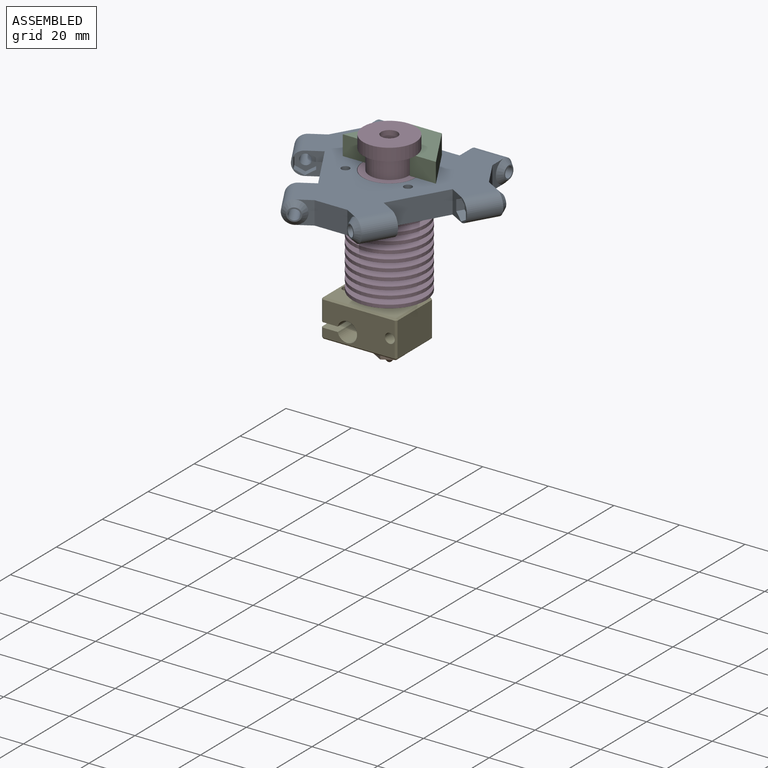
[diagram: assembled view]
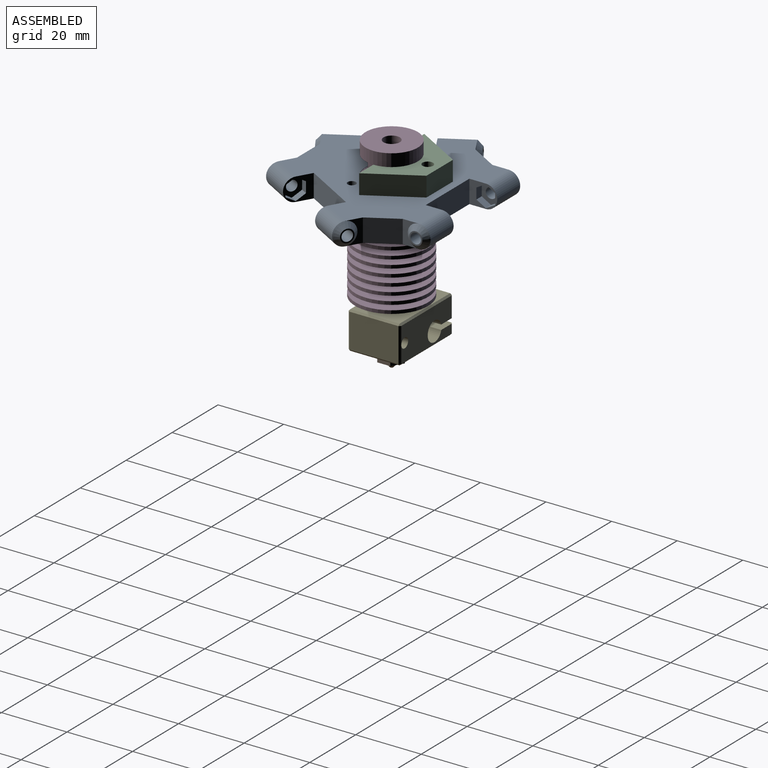
[diagram: assembled view, second angle]
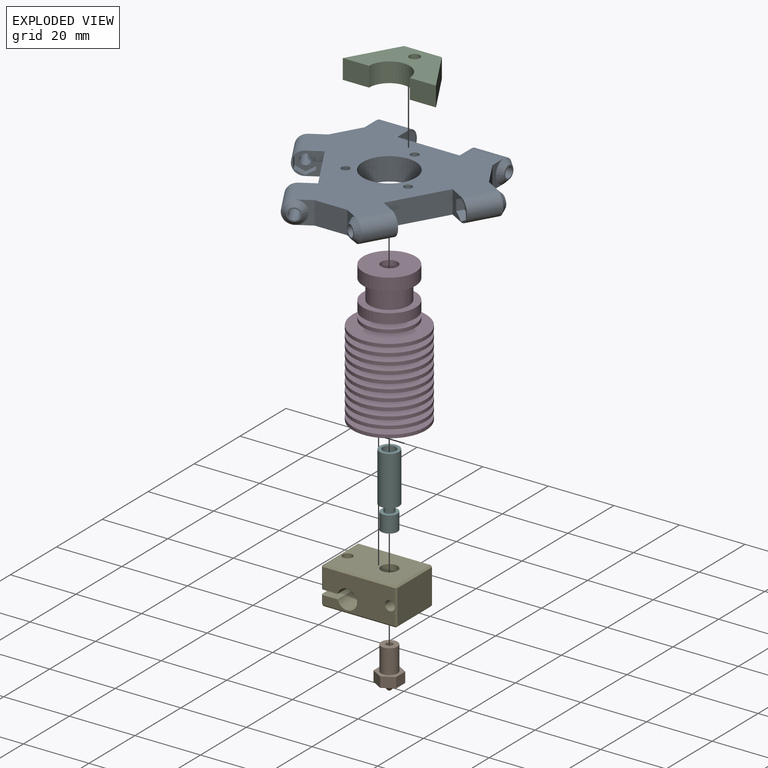
[diagram: exploded view]
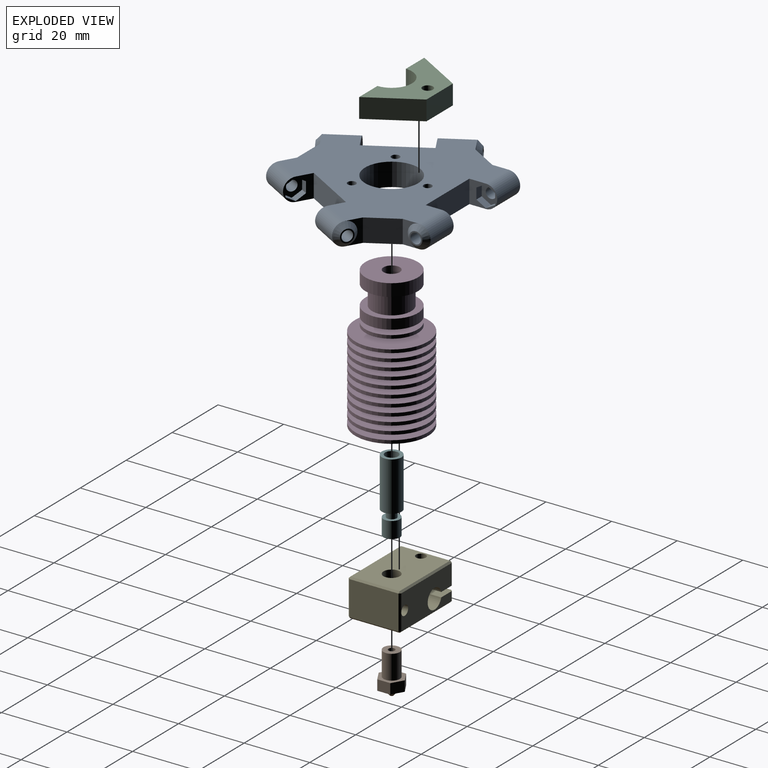
[diagram: exploded view, second angle]
ASSEMBLY  parts=6 mates=5
PART A: 90 faces, bbox 63.7x55.7x7 mm
  f0: plane 8.5x7mm, normal (-1,0,0), area 26.1mm2, adj f2,f18,f25,f26,f77,f78,f79,f80
  f1: plane 8.5x7mm, normal (1,0,0), area 26.1mm2, adj f18,f25,f26,f27,f71,f72,f73,f74
  f2: cylinder r=3.5mm len=10mm, axis (1,0,0), area 110mm2, adj f0,f25,f26,f85
  f3: plane 7.36x7mm, normal (0.5,-0.87,0), area 26.1mm2, adj f5,f10,f25,f26,f59,f60,f61,f62
  f4: plane 7.36x7mm, normal (-0.5,0.87,0), area 26.1mm2, adj f10,f25,f26,f29,f53,f54,f55,f56
  f5: cylinder r=3.5mm len=10.41mm, axis (-0.5,0.87,0), area 110mm2, adj f3,f25,f26,f86
  f6: plane 7.36x7mm, normal (0.5,0.87,0), area 26.1mm2, adj f8,f14,f25,f26,f41,f42,f43,f44
  f7: plane 7.36x7mm, normal (-0.5,-0.87,0), area 26.1mm2, adj f14,f25,f26,f28,f35,f36,f37,f38
  f8: cylinder r=3.5mm len=10.41mm, axis (-0.5,-0.87,0), area 110mm2, adj f6,f25,f26,f88
  f9: plane 7x4.33mm, normal (-0.5,0.87,0), area 15.8mm2, adj f20,f25,f26,f86
  f10: plane 16.45x9.5mm, normal (-0.87,-0.5,0), area 133mm2, adj f3,f4,f25,f26
  f11: plane 7x4.33mm, normal (0.5,-0.87,0), area 15.8mm2, adj f12,f25,f26,f87
  f12: plane 10x7mm, normal (0,-1,0), area 70mm2, adj f11,f13,f25,f26
  f13: plane 7x4.33mm, normal (-0.5,-0.87,0), area 15.8mm2, adj f12,f25,f26,f88
  f14: plane 16.45x9.5mm, normal (0.87,-0.5,0), area 133mm2, adj f6,f7,f25,f26
  f15: plane 7x4.33mm, normal (0.5,0.87,0), area 15.8mm2, adj f16,f25,f26,f89
  f16: plane 8.66x7mm, normal (0.87,0.5,0), area 70mm2, adj f15,f17,f25,f26
  f17: plane 7x5mm, normal (1,0,0), area 15.8mm2, adj f16,f25,f26,f85
  f18: plane 19x7mm, normal (0,1,0), area 133mm2, adj f0,f1,f25,f26
  f19: plane 7x5mm, normal (-1,0,0), area 15.8mm2, adj f20,f25,f26,f84
  f20: plane 8.66x7mm, normal (-0.87,0.5,0), area 70mm2, adj f9,f19,f25,f26
  f21: cylinder r=1.25mm len=7mm, axis (0,0,1), area 55mm2, adj f25,f26
  f22: cylinder r=1.25mm len=7mm, axis (0,0,1), area 55mm2, adj f25,f26
  f23: cylinder r=8.1mm len=16.2mm, axis (0,0,1), area 356.3mm2, adj f25,f26
  f24: cylinder r=1.25mm len=7mm, axis (0,0,1), area 55mm2, adj f25,f26
  f25: plane 57.66x49.94mm, normal (0,0,-1), area 1456.6mm2, adj f0,f1,f2,f3,f4,f5,f6,f7
  f26: plane 57.66x49.94mm, normal (0,0,1), area 1456.6mm2, adj f0,f1,f2,f3,f4,f5,f6,f7
  f27: cylinder r=3.5mm len=10mm, axis (1,0,0), area 110mm2, adj f1,f25,f26,f84
  f28: cylinder r=3.5mm len=10.41mm, axis (-0.5,-0.87,0), area 110mm2, adj f7,f25,f26,f89
  f29: cylinder r=3.5mm len=10.41mm, axis (-0.5,0.87,0), area 110mm2, adj f4,f25,f26,f87
  f30: plane 4x3.46mm, normal (0.5,0.87,0), area 4.5mm2, adj f31,f89
  f31: cylinder r=1.6mm len=9.57mm, axis (-0.5,-0.87,0), area 92.5mm2, adj f30,f34
  f32: cylinder r=1.6mm len=9.57mm, axis (-0.5,-0.87,0), area 92.5mm2, adj f33,f47
  f33: plane 4x3.46mm, normal (-0.5,-0.87,0), area 4.5mm2, adj f32,f88
  f34: plane 6.58x4.94mm, normal (-0.5,-0.87,0), area 20.1mm2, adj f31,f35,f36,f37,f38,f39,f40
  f35: plane 3.62x3.42mm, normal (-0.43,0.25,-0.87), area 7.6mm2, adj f7,f34,f36,f40
  f36: plane 3.29x1.99mm, normal (-0.87,0.5,0), area 7.6mm2, adj f7,f34,f35,f37
  f37: plane 3.62x3.42mm, normal (-0.43,0.25,0.87), area 7.6mm2, adj f7,f34,f36,f38
  f38: plane 3.62x3.42mm, normal (0.43,-0.25,0.87), area 7.6mm2, adj f7,f34,f37,f39
  f39: plane 3.29x1.99mm, normal (0.87,-0.5,0), area 7.6mm2, adj f7,f34,f38,f40
  f40: plane 3.62x3.42mm, normal (0.43,-0.25,-0.87), area 7.6mm2, adj f7,f34,f35,f39
  f41: plane 3.62x3.42mm, normal (0.43,-0.25,-0.87), area 7.6mm2, adj f6,f42,f46,f47
  f42: plane 3.29x1.99mm, normal (0.87,-0.5,0), area 7.6mm2, adj f6,f41,f43,f47
  f43: plane 3.62x3.42mm, normal (0.43,-0.25,0.87), area 7.6mm2, adj f6,f42,f44,f47
  f44: plane 3.62x3.42mm, normal (-0.43,0.25,0.87), area 7.6mm2, adj f6,f43,f45,f47
  f45: plane 3.29x1.99mm, normal (-0.87,0.5,0), area 7.6mm2, adj f6,f44,f46,f47
  f46: plane 3.62x3.42mm, normal (-0.43,0.25,-0.87), area 7.6mm2, adj f6,f41,f45,f47
  f47: plane 6.58x4.94mm, normal (0.5,0.87,0), area 20.1mm2, adj f32,f41,f42,f43,f44,f45,f46
  f48: plane 4x3.46mm, normal (0.5,-0.87,0), area 4.5mm2, adj f49,f87
  f49: cylinder r=1.6mm len=9.57mm, axis (-0.5,0.87,0), area 92.5mm2, adj f48,f52
  f50: cylinder r=1.6mm len=9.57mm, axis (-0.5,0.87,0), area 92.5mm2, adj f51,f65
  f51: plane 4x3.46mm, normal (-0.5,0.87,0), area 4.5mm2, adj f50,f86
  f52: plane 6.58x4.94mm, normal (-0.5,0.87,0), area 20.1mm2, adj f49,f53,f54,f55,f56,f57,f58
  f53: plane 3.62x3.42mm, normal (0.43,0.25,-0.87), area 7.6mm2, adj f4,f52,f54,f58
  f54: plane 3.29x1.99mm, normal (0.87,0.5,0), area 7.6mm2, adj f4,f52,f53,f55
  f55: plane 3.62x3.42mm, normal (0.43,0.25,0.87), area 7.6mm2, adj f4,f52,f54,f56
  f56: plane 3.62x3.42mm, normal (-0.43,-0.25,0.87), area 7.6mm2, adj f4,f52,f55,f57
  f57: plane 3.29x1.99mm, normal (-0.87,-0.5,0), area 7.6mm2, adj f4,f52,f56,f58
  f58: plane 3.62x3.42mm, normal (-0.43,-0.25,-0.87), area 7.6mm2, adj f4,f52,f53,f57
  f59: plane 3.62x3.42mm, normal (-0.43,-0.25,-0.87), area 7.6mm2, adj f3,f60,f64,f65
  f60: plane 3.29x1.99mm, normal (-0.87,-0.5,0), area 7.6mm2, adj f3,f59,f61,f65
  f61: plane 3.62x3.42mm, normal (-0.43,-0.25,0.87), area 7.6mm2, adj f3,f60,f62,f65
  f62: plane 3.62x3.42mm, normal (0.43,0.25,0.87), area 7.6mm2, adj f3,f61,f63,f65
  f63: plane 3.29x1.99mm, normal (0.87,0.5,0), area 7.6mm2, adj f3,f62,f64,f65
  f64: plane 3.62x3.42mm, normal (0.43,0.25,-0.87), area 7.6mm2, adj f3,f59,f63,f65
  f65: plane 6.58x4.94mm, normal (0.5,-0.87,0), area 20.1mm2, adj f50,f59,f60,f61,f62,f63,f64
  f66: plane 4x4mm, normal (-1,0,0), area 4.5mm2, adj f67,f84
  f67: cylinder r=1.6mm len=9.2mm, axis (1,0,0), area 92.5mm2, adj f66,f70
  f68: cylinder r=1.6mm len=9.2mm, axis (1,0,0), area 92.5mm2, adj f69,f83
  f69: plane 4x4mm, normal (1,0,0), area 4.5mm2, adj f68,f85
  f70: plane 6.58x5.7mm, normal (1,0,0), area 20.1mm2, adj f67,f71,f72,f73,f74,f75,f76
  f71: plane 2.85x2.3mm, normal (0,-0.5,-0.87), area 7.6mm2, adj f1,f70,f72,f76
  f72: plane 3.29x2.3mm, normal (0,-1,0), area 7.6mm2, adj f1,f70,f71,f73
  f73: plane 2.85x2.3mm, normal (0,-0.5,0.87), area 7.6mm2, adj f1,f70,f72,f74
  f74: plane 2.85x2.3mm, normal (0,0.5,0.87), area 7.6mm2, adj f1,f70,f73,f75
  f75: plane 3.29x2.3mm, normal (0,1,0), area 7.6mm2, adj f1,f70,f74,f76
  f76: plane 2.85x2.3mm, normal (0,0.5,-0.87), area 7.6mm2, adj f1,f70,f71,f75
  f77: plane 2.85x2.3mm, normal (0,0.5,-0.87), area 7.6mm2, adj f0,f78,f82,f83
  f78: plane 3.29x2.3mm, normal (0,1,0), area 7.6mm2, adj f0,f77,f79,f83
  f79: plane 2.85x2.3mm, normal (0,0.5,0.87), area 7.6mm2, adj f0,f78,f80,f83
  f80: plane 2.85x2.3mm, normal (0,-0.5,0.87), area 7.6mm2, adj f0,f79,f81,f83
  f81: plane 3.29x2.3mm, normal (0,-1,0), area 7.6mm2, adj f0,f80,f82,f83
  f82: plane 2.85x2.3mm, normal (0,-0.5,-0.87), area 7.6mm2, adj f0,f77,f81,f83
  f83: plane 6.58x5.7mm, normal (-1,0,0), area 20.1mm2, adj f68,f77,f78,f79,f80,f81,f82
  f84: cone r=3.5mm half-angle=45deg, axis (1,0,0), area 36.7mm2, adj f19,f27,f66
  f85: cone r=2mm half-angle=45deg, axis (-1,0,0), area 36.7mm2, adj f2,f17,f69
  f86: cone r=2mm half-angle=45deg, axis (0.5,-0.87,0), area 36.7mm2, adj f5,f9,f51
  f87: cone r=3.5mm half-angle=45deg, axis (-0.5,0.87,0), area 36.7mm2, adj f11,f29,f48
  f88: cone r=2mm half-angle=45deg, axis (0.5,0.87,0), area 36.7mm2, adj f8,f13,f33
  f89: cone r=3.5mm half-angle=45deg, axis (-0.5,-0.87,0), area 36.7mm2, adj f15,f28,f30
PART B: 15 faces, bbox 6.9x8x12.6 mm
  f0: cylinder r=1mm len=10.66mm, axis (0,0,-1), area 67mm2, adj f1,f8
  f1: cone r=0.2mm half-angle=42deg, axis (0,0,1), area 4.5mm2, adj f0,f2
  f2: cylinder r=0.2mm len=1mm, axis (0,0,-1), area 1.3mm2, adj f1,f3
  f3: plane 1x1mm, normal (0,0,-1), area 0.7mm2, adj f2,f4
  f4: cone r=0.5mm half-angle=42deg, axis (0,0,1), area 23.7mm2, adj f3,f5
  f5: plane 7.97x6.9mm, normal (0,0,-1), area 24.6mm2, adj f4,f9,f10,f11,f12,f13,f14
  f6: plane 7.97x6.9mm, normal (0,0,1), area 21.6mm2, adj f7,f9,f10,f11,f12,f13,f14
  f7: cylinder r=2.5mm len=7.4mm, axis (0,0,-1), area 116.2mm2, adj f6,f8
  f8: plane 5x5mm, normal (0,0,1), area 16.5mm2, adj f0,f7
  f9: plane 3.45x3.15mm, normal (-0.5,0.87,0), area 12.5mm2, adj f5,f6,f10,f14
  f10: plane 3.98x3.15mm, normal (-1,0,0), area 12.5mm2, adj f5,f6,f9,f11
  f11: plane 3.45x3.15mm, normal (-0.5,-0.87,0), area 12.5mm2, adj f5,f6,f10,f12
  f12: plane 3.45x3.15mm, normal (0.5,-0.87,0), area 12.5mm2, adj f5,f6,f11,f13
  f13: plane 3.98x3.15mm, normal (1,0,0), area 12.5mm2, adj f5,f6,f12,f14
  f14: plane 3.45x3.15mm, normal (0.5,0.87,0), area 12.5mm2, adj f5,f6,f9,f13
PART C: 9 faces, bbox 28.4x14.6x6 mm
  f0: plane 11.5x6mm, normal (0,1,0), area 69mm2, adj f1,f6,f7,f8
  f1: plane 14.64x8.45mm, normal (-0.87,0.5,0), area 101.4mm2, adj f0,f2,f7,f8
  f2: plane 8x6mm, normal (0,-1,0), area 48mm2, adj f1,f3,f7,f8
  f3: cylinder r=6.2mm len=12.4mm, axis (0,0,-1), area 116.9mm2, adj f2,f4,f7,f8
  f4: plane 8x6mm, normal (0,-1,0), area 48mm2, adj f3,f6,f7,f8
  f5: cylinder r=1.6mm len=6mm, axis (0,0,-1), area 60.3mm2, adj f7,f8
  f6: plane 14.64x8.45mm, normal (0.87,0.5,0), area 101.4mm2, adj f0,f4,f7,f8
  f7: plane 28.4x14.64mm, normal (0,0,1), area 223.6mm2, adj f0,f1,f2,f3,f4,f5,f6
  f8: plane 28.4x14.64mm, normal (0,0,-1), area 223.6mm2, adj f0,f1,f2,f3,f4,f5,f6
PART D: 60 faces, bbox 22.3x22.3x42.8 mm
  f0: cylinder r=2mm len=17.8mm, axis (0,0,-1), area 223.7mm2, adj f1,f59
  f1: plane 6x6mm, normal (0,0,-1), area 15.7mm2, adj f0,f2
  f2: cylinder r=3mm len=15mm, axis (0,0,-1), area 282.7mm2, adj f1,f3
  f3: plane 22.3x22.3mm, normal (0,0,-1), area 362.3mm2, adj f2,f4
  f4: cylinder r=11.15mm len=22.3mm, axis (0,0,-1), area 70.1mm2, adj f3,f5
  f5: plane 22.3x22.3mm, normal (0,0,1), area 277.5mm2, adj f4,f6
  f6: cylinder r=6mm len=12mm, axis (0,0,-1), area 56.5mm2, adj f5,f7
  f7: plane 22.3x22.3mm, normal (0,0,-1), area 277.5mm2, adj f6,f8
  f8: cylinder r=11.15mm len=22.3mm, axis (0,0,-1), area 70.1mm2, adj f7,f9
  f9: plane 22.3x22.3mm, normal (0,0,1), area 284.9mm2, adj f8,f10
  f10: cylinder r=5.8mm len=11.6mm, axis (0,0,-1), area 54.7mm2, adj f9,f11
  f11: plane 22.3x22.3mm, normal (0,0,-1), area 284.9mm2, adj f10,f12
  f12: cylinder r=11.15mm len=22.3mm, axis (0,0,-1), area 70.1mm2, adj f11,f13
  f13: plane 22.3x22.3mm, normal (0,0,1), area 292.1mm2, adj f12,f14
  f14: cylinder r=5.6mm len=11.2mm, axis (0,0,-1), area 52.8mm2, adj f13,f15
  f15: plane 22.3x22.3mm, normal (0,0,-1), area 292.1mm2, adj f14,f16
  f16: cylinder r=11.15mm len=22.3mm, axis (0,0,-1), area 70.1mm2, adj f15,f17
  f17: plane 22.3x22.3mm, normal (0,0,1), area 299mm2, adj f16,f18
  f18: cylinder r=5.4mm len=10.8mm, axis (0,0,-1), area 50.9mm2, adj f17,f19
  f19: plane 22.3x22.3mm, normal (0,0,-1), area 299mm2, adj f18,f20
  f20: cylinder r=11.15mm len=22.3mm, axis (0,0,-1), area 70.1mm2, adj f19,f21
  f21: plane 22.3x22.3mm, normal (0,0,1), area 305.6mm2, adj f20,f22
  f22: cylinder r=5.2mm len=10.4mm, axis (0,0,-1), area 49mm2, adj f21,f23
  f23: plane 22.3x22.3mm, normal (0,0,-1), area 305.6mm2, adj f22,f24
  f24: cylinder r=11.15mm len=22.3mm, axis (0,0,-1), area 70.1mm2, adj f23,f25
  f25: plane 22.3x22.3mm, normal (0,0,1), area 312mm2, adj f24,f26
  f26: cylinder r=5mm len=10mm, axis (0,0,-1), area 47.1mm2, adj f25,f27
  f27: plane 22.3x22.3mm, normal (0,0,-1), area 312mm2, adj f26,f28
  f28: cylinder r=11.15mm len=22.3mm, axis (0,0,-1), area 70.1mm2, adj f27,f29
  f29: plane 22.3x22.3mm, normal (0,0,1), area 318.2mm2, adj f28,f30
  f30: cylinder r=4.8mm len=9.6mm, axis (0,0,-1), area 45.2mm2, adj f29,f31
  f31: plane 22.3x22.3mm, normal (0,0,-1), area 318.2mm2, adj f30,f32
  f32: cylinder r=11.15mm len=22.3mm, axis (0,0,-1), area 70.1mm2, adj f31,f33
  f33: plane 22.3x22.3mm, normal (0,0,1), area 324.1mm2, adj f32,f34
  f34: cylinder r=4.6mm len=9.2mm, axis (0,0,-1), area 43.4mm2, adj f33,f35
  f35: plane 22.3x22.3mm, normal (0,0,-1), area 324.1mm2, adj f34,f36
  f36: cylinder r=11.15mm len=22.3mm, axis (0,0,-1), area 70.1mm2, adj f35,f37
  f37: plane 22.3x22.3mm, normal (0,0,1), area 329.7mm2, adj f36,f38
  f38: cylinder r=4.4mm len=8.8mm, axis (0,0,-1), area 41.5mm2, adj f37,f39
  f39: plane 22.3x22.3mm, normal (0,0,-1), area 329.7mm2, adj f38,f40
  f40: cylinder r=11.15mm len=22.3mm, axis (0,0,-1), area 70.1mm2, adj f39,f41
  f41: plane 22.3x22.3mm, normal (0,0,1), area 335.2mm2, adj f40,f42
  f42: cylinder r=4.2mm len=8.4mm, axis (0,0,-1), area 39.6mm2, adj f41,f43
  f43: plane 22.3x22.3mm, normal (0,0,-1), area 335.2mm2, adj f42,f44
  f44: cylinder r=11.15mm len=22.3mm, axis (0,0,-1), area 70.1mm2, adj f43,f45
  f45: plane 22.3x22.3mm, normal (0,0,1), area 340.3mm2, adj f44,f46
  f46: cylinder r=4mm len=8mm, axis (0,0,-1), area 37.7mm2, adj f45,f47
  f47: plane 16x16mm, normal (0,0,-1), area 150.8mm2, adj f46,f48
  f48: cylinder r=8mm len=16mm, axis (0,0,-1), area 50.3mm2, adj f47,f49
  f49: plane 16x16mm, normal (0,0,1), area 150.8mm2, adj f48,f50
  f50: cylinder r=4mm len=8mm, axis (0,0,-1), area 37.7mm2, adj f49,f51
  f51: plane 16x16mm, normal (0,0,-1), area 150.8mm2, adj f50,f52
  f52: cylinder r=8mm len=16mm, axis (0,0,-1), area 150.8mm2, adj f51,f53
  f53: plane 16x16mm, normal (0,0,1), area 88mm2, adj f52,f54
  f54: cylinder r=6mm len=12mm, axis (0,0,-1), area 226.2mm2, adj f53,f55
  f55: plane 16x16mm, normal (0,0,-1), area 88mm2, adj f54,f56
  f56: cylinder r=8mm len=16mm, axis (0,0,-1), area 191mm2, adj f55,f57
  f57: plane 16x16mm, normal (0,0,1), area 181.4mm2, adj f56,f58
  f58: cylinder r=2.5mm len=8mm, axis (0,0,-1), area 125.7mm2, adj f57,f59
  f59: cone r=2.5mm half-angle=14deg, axis (0,0,1), area 29.1mm2, adj f0,f58
PART E: 39 faces, bbox 23x16x11.5 mm
  f0: plane 16x5.1mm, normal (0,0,-1), area 74.2mm2, adj f1,f8,f9,f10,f15,f17,f19
  f1: cylinder r=3mm len=16mm, axis (0,1,0), area 277.3mm2, adj f0,f2,f9,f10
  f2: plane 16x5.1mm, normal (0,0,1), area 74.2mm2, adj f1,f3,f9,f10,f16,f32,f35
  f3: plane 15x2.75mm, normal (-1,0,0), area 41.2mm2, adj f2,f32,f35,f38
  f4: plane 22x15mm, normal (0,0,-1), area 296.2mm2, adj f13,f14,f16,f28,f33,f34,f38
  f5: plane 15x10.5mm, normal (1,0,0), area 157.5mm2, adj f23,f27,f28,f29
  f6: plane 22x15mm, normal (0,0,1), area 303.3mm2, adj f14,f15,f18,f22,f23,f24
  f7: cylinder r=1.5mm len=16mm, axis (0,1,0), area 141.8mm2, adj f9,f10,f11,f12,f13
  f8: plane 15x6.25mm, normal (-1,0,0), area 93.7mm2, adj f0,f17,f18,f19
  f9: plane 22x10.5mm, normal (0,-1,0), area 188.9mm2, adj f0,f1,f2,f7,f17,f22,f27,f32
  f10: plane 22x10.5mm, normal (0,1,0), area 188.9mm2, adj f0,f1,f2,f7,f19,f24,f29,f34
  f11: cylinder r=1.5mm len=0.1mm, axis (0,0,-1), area 0mm2, adj f7
  f12: cylinder r=1.5mm len=0.1mm, axis (0,0,-1), area 0mm2, adj f7
  f13: cylinder r=1.5mm len=5.75mm, axis (0,0,-1), area 45.2mm2, adj f4,f7
  f14: cylinder r=2.5mm len=11.5mm, axis (0,0,-1), area 180.6mm2, adj f4,f6
  f15: cylinder r=1.5mm len=6.75mm, axis (0,0,-1), area 63.6mm2, adj f0,f6
  f16: cylinder r=1.5mm len=3.25mm, axis (0,0,-1), area 30.6mm2, adj f2,f4
  f17: plane 6.25x0.5mm, normal (-0.71,-0.71,0), area 4.4mm2, adj f0,f8,f9,f20
  f18: plane 15x0.5mm, normal (-0.71,0,0.71), area 10.6mm2, adj f6,f8,f20,f21
  f19: plane 6.25x0.5mm, normal (-0.71,0.71,0), area 4.4mm2, adj f0,f8,f10,f21
  f20: plane 0.5x0.5mm, normal (-0.58,-0.58,0.58), area 0.2mm2, adj f17,f18,f22
  f21: plane 0.5x0.5mm, normal (-0.58,0.58,0.58), area 0.2mm2, adj f18,f19,f24
  f22: plane 22x0.5mm, normal (0,-0.71,0.71), area 15.6mm2, adj f6,f9,f20,f25
  f23: plane 15x0.5mm, normal (0.71,0,0.71), area 10.6mm2, adj f5,f6,f25,f26
  f24: plane 22x0.5mm, normal (0,0.71,0.71), area 15.6mm2, adj f6,f10,f21,f26
  f25: plane 0.5x0.5mm, normal (0.58,-0.58,0.58), area 0.2mm2, adj f22,f23,f27
  f26: plane 0.5x0.5mm, normal (0.58,0.58,0.58), area 0.2mm2, adj f23,f24,f29
  f27: plane 10.5x0.5mm, normal (0.71,-0.71,0), area 7.4mm2, adj f5,f9,f25,f30
  f28: plane 15x0.5mm, normal (0.71,0,-0.71), area 10.6mm2, adj f4,f5,f30,f31
  f29: plane 10.5x0.5mm, normal (0.71,0.71,0), area 7.4mm2, adj f5,f10,f26,f31
  f30: plane 0.5x0.5mm, normal (0.58,-0.58,-0.58), area 0.2mm2, adj f27,f28,f33
  f31: plane 0.5x0.5mm, normal (0.58,0.58,-0.58), area 0.2mm2, adj f28,f29,f34
  f32: plane 2.75x0.5mm, normal (-0.71,-0.71,0), area 1.9mm2, adj f2,f3,f9,f36
  f33: plane 22x0.5mm, normal (0,-0.71,-0.71), area 15.6mm2, adj f4,f9,f30,f36
  f34: plane 22x0.5mm, normal (0,0.71,-0.71), area 15.6mm2, adj f4,f10,f31,f37
  f35: plane 2.75x0.5mm, normal (-0.71,0.71,0), area 1.9mm2, adj f2,f3,f10,f37
  f36: plane 0.5x0.5mm, normal (-0.58,-0.58,-0.58), area 0.2mm2, adj f32,f33,f38
  f37: plane 0.5x0.5mm, normal (-0.58,0.58,-0.58), area 0.2mm2, adj f34,f35,f38
  f38: plane 15x0.5mm, normal (-0.71,0,-0.71), area 10.6mm2, adj f3,f4,f36,f37
PART F: 10 faces, bbox 6x6x22.2 mm
  f0: cylinder r=1.5mm len=3mm, axis (0,0,-1), area 20.7mm2, adj f1,f9
  f1: plane 6x6mm, normal (0,0,-1), area 21.2mm2, adj f0,f2
  f2: cylinder r=3mm len=15mm, axis (0,0,-1), area 282.7mm2, adj f1,f3
  f3: plane 6x6mm, normal (0,0,1), area 15.7mm2, adj f2,f4
  f4: cylinder r=2mm len=5mm, axis (0,0,-1), area 62.8mm2, adj f3,f5
  f5: plane 4x4mm, normal (0,0,1), area 9.4mm2, adj f4,f6
  f6: cylinder r=1mm len=17.2mm, axis (0,0,-1), area 108.1mm2, adj f5,f7
  f7: plane 5x5mm, normal (0,0,-1), area 16.5mm2, adj f6,f8
  f8: cylinder r=2.5mm len=5mm, axis (0,0,-1), area 78.5mm2, adj f7,f9
  f9: plane 5x5mm, normal (0,0,1), area 12.6mm2, adj f0,f8
PLACE A t=(-1.56,-4.09,-5.8)mm
PLACE B t=(-1.56,-4.09,-46)mm
PLACE C t=(-1.56,-4.09,-5.8)mm
PLACE D t=(-1.56,-4.09,-38.8)mm
PLACE E t=(13.19,3.91,-53.4)mm
PLACE F t=(2.44,-4.09,-38.8)mm
MATE fastened F.f0 <-> D.f0  axis (0,0,-1) through (-1.56,-4.09,-38.8)mm
MATE fastened D.f0 <-> A.f23  axis (0,0,-1) through (-1.56,-4.09,-5.8)mm
MATE fastened B.f0 <-> F.f0  axis (0,0,-1) through (-1.56,-4.09,-46)mm
MATE fastened E.f14 <-> B.f0  axis (0,0,-1) through (-1.56,-4.09,-53.4)mm
MATE fastened C.f3 <-> A.f23  axis (0,0,-1) through (-1.56,-4.09,-5.8)mm
